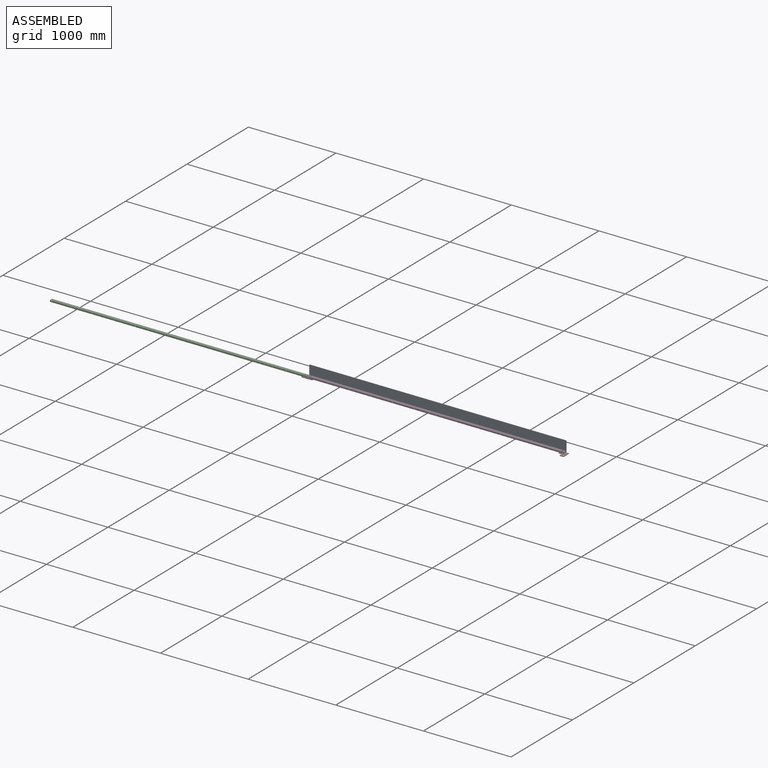
[diagram: assembled view]
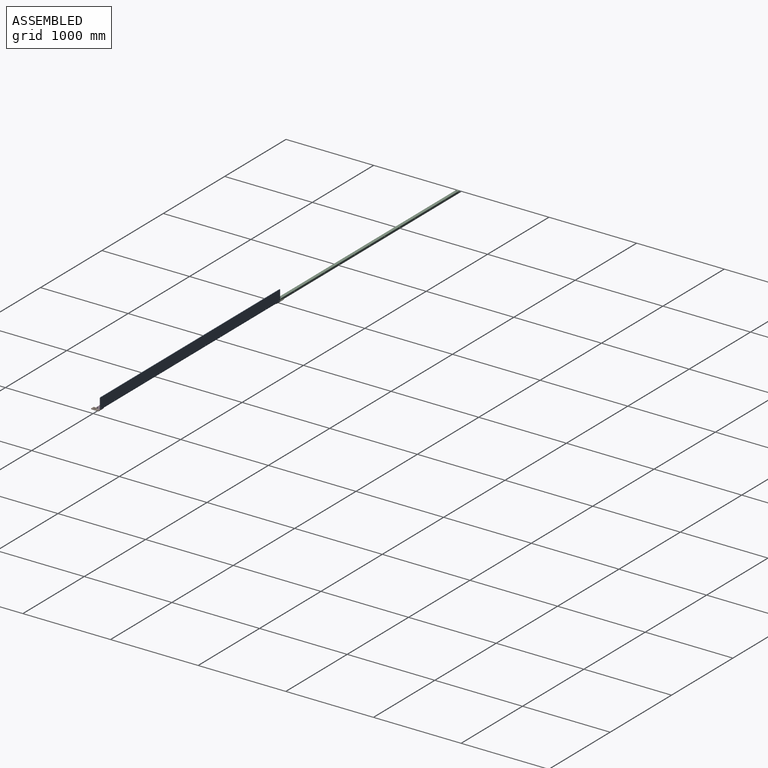
[diagram: assembled view, second angle]
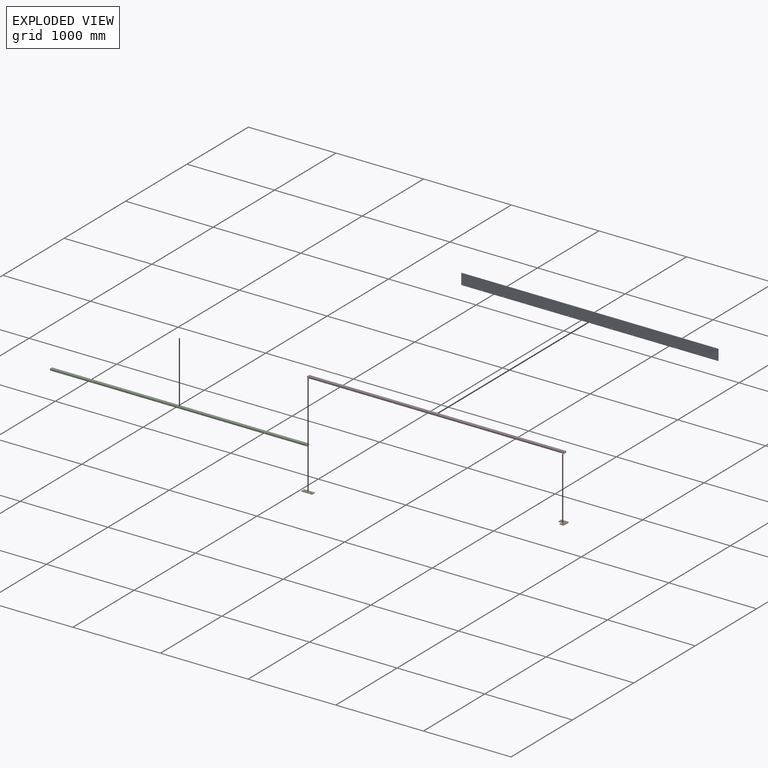
[diagram: exploded view]
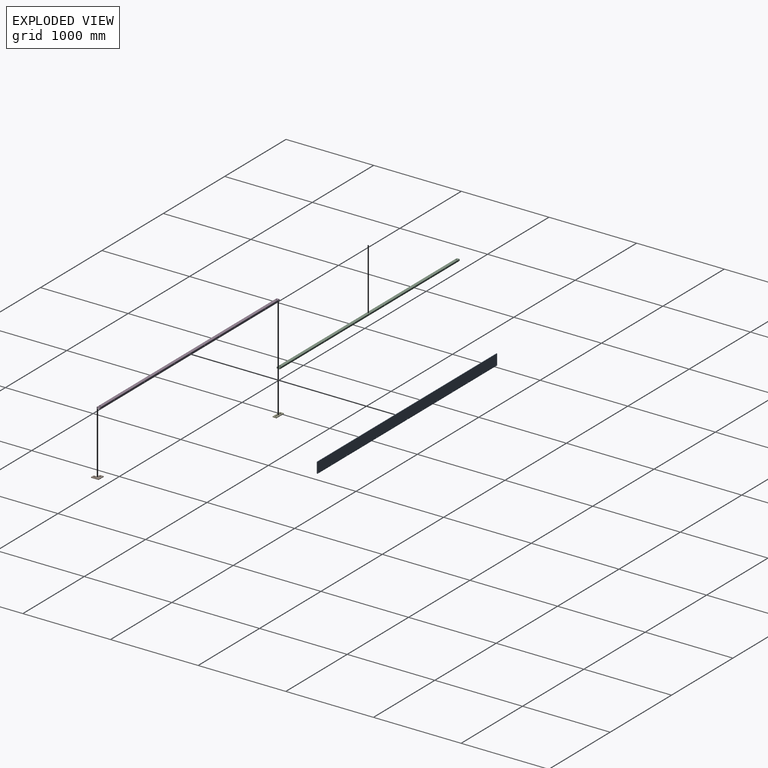
[diagram: exploded view, second angle]
ASSEMBLY  parts=5 mates=4
PART A: 32 faces, bbox 2930x6x125 mm
  f0: plane 6x5mm, normal (-0.62,0,-0.78), area 38.4mm2, adj f1,f12,f13,f14
  f1: plane 985x6mm, normal (0,0,-1), area 5910mm2, adj f0,f2,f13,f14
  f2: plane 6x5mm, normal (0.62,0,-0.78), area 38.4mm2, adj f1,f3,f13,f14
  f3: plane 6x5mm, normal (-0.62,0,-0.78), area 38.4mm2, adj f2,f4,f13,f14
  f4: plane 460x6mm, normal (0,0,-1), area 2760mm2, adj f3,f13,f14,f28
  f5: plane 115x6mm, normal (1,0,0), area 690mm2, adj f13,f14,f28,f29
  f6: plane 2920x6mm, normal (0,0,1), area 17520mm2, adj f13,f14,f29,f30
  f7: plane 115x6mm, normal (-1,0,0), area 690mm2, adj f13,f14,f30,f31
  f8: plane 460x6mm, normal (0,0,-1), area 2760mm2, adj f9,f13,f14,f31
  f9: plane 6x5mm, normal (0.62,0,-0.78), area 38.4mm2, adj f8,f10,f13,f14
  f10: plane 6x5mm, normal (-0.62,0,-0.78), area 38.4mm2, adj f9,f11,f13,f14
  f11: plane 985x6mm, normal (0,0,-1), area 5910mm2, adj f10,f12,f13,f14
  f12: plane 6x5mm, normal (0.62,0,-0.78), area 38.4mm2, adj f0,f11,f13,f14
  f13: plane 2930x125mm, normal (0,-1,0), area 365341.5mm2, adj f0,f1,f2,f3,f4,f5,f6,f7
  f14: plane 2930x125mm, normal (0,1,0), area 365341.5mm2, adj f0,f1,f2,f3,f4,f5,f6,f7
  f15: cylinder r=4.5mm len=9mm, axis (0,1,0), area 169.6mm2, adj f13,f14
  f16: cylinder r=4.5mm len=9mm, axis (0,1,0), area 169.6mm2, adj f13,f14
  f17: cylinder r=4.5mm len=9mm, axis (0,1,0), area 169.6mm2, adj f13,f14
  f18: cylinder r=4.5mm len=9mm, axis (0,1,0), area 169.6mm2, adj f13,f14
  f19: cylinder r=4.5mm len=9mm, axis (0,1,0), area 169.6mm2, adj f13,f14
  f20: cylinder r=4.5mm len=9mm, axis (0,1,0), area 169.6mm2, adj f13,f14
  f21: cylinder r=4.5mm len=9mm, axis (0,1,0), area 169.6mm2, adj f13,f14
  f22: cylinder r=4.5mm len=9mm, axis (0,1,0), area 169.6mm2, adj f13,f14
  f23: cylinder r=4.5mm len=9mm, axis (0,1,0), area 169.6mm2, adj f13,f14
  f24: cylinder r=4.5mm len=9mm, axis (0,1,0), area 169.6mm2, adj f13,f14
  f25: cylinder r=4.5mm len=9mm, axis (0,1,0), area 169.6mm2, adj f13,f14
  f26: cylinder r=4.5mm len=9mm, axis (0,1,0), area 169.6mm2, adj f13,f14
  f27: cylinder r=4.5mm len=9mm, axis (0,1,0), area 169.6mm2, adj f13,f14
  f28: cylinder r=5mm len=6mm, axis (0,1,0), area 47.1mm2, adj f4,f5,f13,f14
  f29: cylinder r=5mm len=6mm, axis (0,-1,0), area 47.1mm2, adj f5,f6,f13,f14
  f30: cylinder r=5mm len=6mm, axis (0,1,0), area 47.1mm2, adj f6,f7,f13,f14
  f31: cylinder r=5mm len=6mm, axis (0,-1,0), area 47.1mm2, adj f7,f8,f13,f14
PART B: 21 faces, bbox 88.5x88.5x6 mm
  f0: cylinder r=5mm len=10mm, axis (0,0,1), area 94.2mm2, adj f1,f13,f14,f15
  f1: plane 20x6mm, normal (0,1,0), area 120mm2, adj f0,f2,f14,f15
  f2: cylinder r=5mm len=10mm, axis (0,0,1), area 94.2mm2, adj f1,f13,f14,f15
  f3: plane 20x6mm, normal (1,0,0), area 120mm2, adj f4,f11,f14,f15
  f4: cylinder r=5mm len=10mm, axis (0,0,1), area 94.2mm2, adj f3,f5,f14,f15
  f5: plane 20x6mm, normal (-1,0,0), area 120mm2, adj f4,f11,f14,f15
  f6: plane 37x6mm, normal (-1,0,0), area 222mm2, adj f14,f15,f16,f17
  f7: plane 78.5x6mm, normal (0,1,0), area 471mm2, adj f14,f15,f17,f18
  f8: plane 78.5x6mm, normal (1,0,0), area 471mm2, adj f14,f15,f18,f19
  f9: plane 37x6mm, normal (0,-1,0), area 222mm2, adj f14,f15,f19,f20
  f10: plane 36.5x6mm, normal (-1,0,0), area 219mm2, adj f12,f14,f15,f20
  f11: cylinder r=5mm len=10mm, axis (0,0,1), area 94.2mm2, adj f3,f5,f14,f15
  f12: plane 36.5x6mm, normal (0,-1,0), area 219mm2, adj f10,f14,f15,f16
  f13: plane 20x6mm, normal (0,-1,0), area 120mm2, adj f0,f2,f14,f15
  f14: plane 88.5x88.5mm, normal (0,0,-1), area 5526.1mm2, adj f0,f1,f2,f3,f4,f5,f6,f7
  f15: plane 88.5x88.5mm, normal (0,0,1), area 5526.1mm2, adj f0,f1,f2,f3,f4,f5,f6,f7
  f16: cylinder r=5mm len=6mm, axis (0,0,-1), area 47.1mm2, adj f6,f12,f14,f15
  f17: cylinder r=5mm len=6mm, axis (0,0,1), area 47.1mm2, adj f6,f7,f14,f15
  f18: cylinder r=5mm len=6mm, axis (0,0,-1), area 47.1mm2, adj f7,f8,f14,f15
  f19: cylinder r=5mm len=6mm, axis (0,0,1), area 47.1mm2, adj f8,f9,f14,f15
  f20: cylinder r=5mm len=6mm, axis (0,0,-1), area 47.1mm2, adj f9,f10,f14,f15
PART C: 62 faces, bbox 2930x35x20 mm
  f0: plane 29x2mm, normal (1,0,0), area 58mm2, adj f4,f5,f54,f58
  f1: cylinder r=4.5mm len=9mm, axis (0,0,-1), area 56.5mm2, adj f4,f5
  f2: cylinder r=4.5mm len=9mm, axis (0,0,-1), area 56.5mm2, adj f4,f5
  f3: plane 29x2mm, normal (-1,0,0), area 58mm2, adj f4,f5,f55,f59
  f4: plane 2930x29mm, normal (0,0,-1), area 84842.8mm2, adj f0,f1,f2,f3,f56,f60
  f5: plane 2930x29mm, normal (0,0,1), area 84842.8mm2, adj f0,f1,f2,f3,f57,f61
  f6: plane 14x2mm, normal (1,0,0), area 28mm2, adj f21,f22,f50,f58
  f7: cylinder r=4.5mm len=9mm, axis (0,-1,0), area 56.5mm2, adj f21,f22
  f8: cylinder r=4.5mm len=9mm, axis (0,-1,0), area 56.5mm2, adj f21,f22
  f9: cylinder r=4.5mm len=9mm, axis (0,-1,0), area 56.5mm2, adj f21,f22
  f10: cylinder r=4.5mm len=9mm, axis (0,-1,0), area 56.5mm2, adj f21,f22
  f11: cylinder r=4.5mm len=9mm, axis (0,-1,0), area 56.5mm2, adj f21,f22
  f12: cylinder r=4.5mm len=9mm, axis (0,-1,0), area 56.5mm2, adj f21,f22
  f13: cylinder r=4.5mm len=9mm, axis (0,-1,0), area 56.5mm2, adj f21,f22
  f14: cylinder r=4.5mm len=9mm, axis (0,-1,0), area 56.5mm2, adj f21,f22
  f15: cylinder r=4.5mm len=9mm, axis (0,-1,0), area 56.5mm2, adj f21,f22
  f16: cylinder r=4.5mm len=9mm, axis (0,-1,0), area 56.5mm2, adj f21,f22
  f17: cylinder r=4.5mm len=9mm, axis (0,-1,0), area 56.5mm2, adj f21,f22
  f18: cylinder r=4.5mm len=9mm, axis (0,-1,0), area 56.5mm2, adj f21,f22
  f19: cylinder r=4.5mm len=9mm, axis (0,-1,0), area 56.5mm2, adj f21,f22
  f20: plane 14x2mm, normal (-1,0,0), area 28mm2, adj f21,f22,f51,f59
  f21: plane 2930x14mm, normal (0,-1,0), area 40193mm2, adj f6,f7,f8,f9,f10,f11,f12,f13
  f22: plane 2930x14mm, normal (0,1,0), area 40193mm2, adj f6,f7,f8,f9,f10,f11,f12,f13
  f23: plane 14x2mm, normal (-1,0,0), area 28mm2, adj f38,f39,f47,f55
  f24: cylinder r=4.5mm len=9mm, axis (0,-1,0), area 56.5mm2, adj f38,f39
  f25: cylinder r=4.5mm len=9mm, axis (0,-1,0), area 56.5mm2, adj f38,f39
  f26: cylinder r=4.5mm len=9mm, axis (0,-1,0), area 56.5mm2, adj f38,f39
  f27: cylinder r=4.5mm len=9mm, axis (0,-1,0), area 56.5mm2, adj f38,f39
  f28: cylinder r=4.5mm len=9mm, axis (0,-1,0), area 56.5mm2, adj f38,f39
  f29: cylinder r=4.5mm len=9mm, axis (0,-1,0), area 56.5mm2, adj f38,f39
  f30: cylinder r=4.5mm len=9mm, axis (0,-1,0), area 56.5mm2, adj f38,f39
  f31: cylinder r=4.5mm len=9mm, axis (0,-1,0), area 56.5mm2, adj f38,f39
  f32: cylinder r=4.5mm len=9mm, axis (0,-1,0), area 56.5mm2, adj f38,f39
  f33: cylinder r=4.5mm len=9mm, axis (0,-1,0), area 56.5mm2, adj f38,f39
  f34: cylinder r=4.5mm len=9mm, axis (0,-1,0), area 56.5mm2, adj f38,f39
  f35: cylinder r=4.5mm len=9mm, axis (0,-1,0), area 56.5mm2, adj f38,f39
  f36: cylinder r=4.5mm len=9mm, axis (0,-1,0), area 56.5mm2, adj f38,f39
  f37: plane 14x2mm, normal (1,0,0), area 28mm2, adj f38,f39,f46,f54
  f38: plane 2930x14mm, normal (0,1,0), area 40193mm2, adj f23,f24,f25,f26,f27,f28,f29,f30
  f39: plane 2930x14mm, normal (0,-1,0), area 40193mm2, adj f23,f24,f25,f26,f27,f28,f29,f30
  f40: plane 29x2mm, normal (-1,0,0), area 58mm2, adj f44,f45,f47,f51
  f41: cylinder r=7.5mm len=15mm, axis (0,0,-1), area 94.2mm2, adj f44,f45
  f42: cylinder r=7.5mm len=15mm, axis (0,0,-1), area 94.2mm2, adj f44,f45
  f43: plane 29x2mm, normal (1,0,0), area 58mm2, adj f44,f45,f46,f50
  f44: plane 2930x29mm, normal (0,0,1), area 84616.6mm2, adj f40,f41,f42,f43,f48,f52
  f45: plane 2930x29mm, normal (0,0,-1), area 84616.6mm2, adj f40,f41,f42,f43,f49,f53
  f46: plane 3x3mm, normal (1,0,0), area 6.3mm2, adj f37,f43,f48,f49
  f47: plane 3x3mm, normal (-1,0,0), area 6.3mm2, adj f23,f40,f48,f49
  f48: cylinder r=3mm len=2930mm, axis (1,0,0), area 13807.3mm2, adj f38,f44,f46,f47
  f49: cylinder r=1mm len=2930mm, axis (1,0,0), area 4602.4mm2, adj f39,f45,f46,f47
  f50: plane 3x3mm, normal (1,0,0), area 6.3mm2, adj f6,f43,f52,f53
  f51: plane 3x3mm, normal (-1,0,0), area 6.3mm2, adj f20,f40,f52,f53
  f52: cylinder r=3mm len=2930mm, axis (1,0,0), area 13807.3mm2, adj f21,f44,f50,f51
  f53: cylinder r=1mm len=2930mm, axis (1,0,0), area 4602.4mm2, adj f22,f45,f50,f51
  f54: plane 3x3mm, normal (1,0,0), area 6.3mm2, adj f0,f37,f56,f57
  f55: plane 3x3mm, normal (-1,0,0), area 6.3mm2, adj f3,f23,f56,f57
  f56: cylinder r=3mm len=2930mm, axis (1,0,0), area 13807.3mm2, adj f4,f38,f54,f55
  f57: cylinder r=1mm len=2930mm, axis (1,0,0), area 4602.4mm2, adj f5,f39,f54,f55
  f58: plane 3x3mm, normal (1,0,0), area 6.3mm2, adj f0,f6,f60,f61
  f59: plane 3x3mm, normal (-1,0,0), area 6.3mm2, adj f3,f20,f60,f61
  f60: cylinder r=3mm len=2930mm, axis (1,0,0), area 13807.3mm2, adj f4,f21,f58,f59
  f61: cylinder r=1mm len=2930mm, axis (1,0,0), area 4602.4mm2, adj f5,f22,f58,f59
PART D: same geometry as C
PART E: 18 faces, bbox 124x47x6 mm
  f0: cylinder r=5mm len=10mm, axis (0,0,1), area 94.2mm2, adj f1,f11,f12,f13
  f1: plane 20x6mm, normal (0,-1,0), area 120mm2, adj f0,f2,f12,f13
  f2: cylinder r=5mm len=10mm, axis (0,0,1), area 94.2mm2, adj f1,f11,f12,f13
  f3: plane 114x6mm, normal (0,-1,0), area 684mm2, adj f12,f13,f16,f17
  f4: plane 37x6mm, normal (-1,0,0), area 222mm2, adj f12,f13,f14,f17
  f5: plane 114x6mm, normal (0,1,0), area 684mm2, adj f12,f13,f14,f15
  f6: cylinder r=5mm len=10mm, axis (0,0,1), area 94.2mm2, adj f7,f10,f12,f13
  f7: plane 20x6mm, normal (0,1,0), area 120mm2, adj f6,f8,f12,f13
  f8: cylinder r=5mm len=10mm, axis (0,0,1), area 94.2mm2, adj f7,f10,f12,f13
  f9: plane 37x6mm, normal (1,0,0), area 222mm2, adj f12,f13,f15,f16
  f10: plane 20x6mm, normal (0,-1,0), area 120mm2, adj f6,f8,f12,f13
  f11: plane 20x6mm, normal (0,1,0), area 120mm2, adj f0,f2,f12,f13
  f12: plane 124x47mm, normal (0,0,-1), area 5249.5mm2, adj f0,f1,f2,f3,f4,f5,f6,f7
  f13: plane 124x47mm, normal (0,0,1), area 5249.5mm2, adj f0,f1,f2,f3,f4,f5,f6,f7
  f14: cylinder r=5mm len=6mm, axis (0,0,1), area 47.1mm2, adj f4,f5,f12,f13
  f15: cylinder r=5mm len=6mm, axis (0,0,-1), area 47.1mm2, adj f5,f9,f12,f13
  f16: cylinder r=5mm len=6mm, axis (0,0,1), area 47.1mm2, adj f3,f9,f12,f13
  f17: cylinder r=5mm len=6mm, axis (0,0,-1), area 47.1mm2, adj f3,f4,f12,f13
PLACE A t=(-1840.73,574.3,-390.93)mm
PLACE B t=(-1840.73,633.3,-390.93)mm
PLACE C t=(-4774.73,633.3,-390.93)mm
PLACE D t=(-1840.73,633.3,-390.93)mm fixed
PLACE E t=(-4774.73,633.3,-390.93)mm
MATE fastened A.f15 <-> D.f19  axis (0,1,0) through (1114.65,568.3,-140.84)mm
MATE fastened E.f13 <-> D.f1  axis (0,0,1) through (-1770.35,550.8,-150.84)mm
MATE fastened D.f2 <-> B.f15  axis (0,0,-1) through (1099.65,550.8,-150.84)mm
MATE fastened C.f2 <-> E.f13  axis (0,0,-1) through (-1834.35,550.8,-150.84)mm
